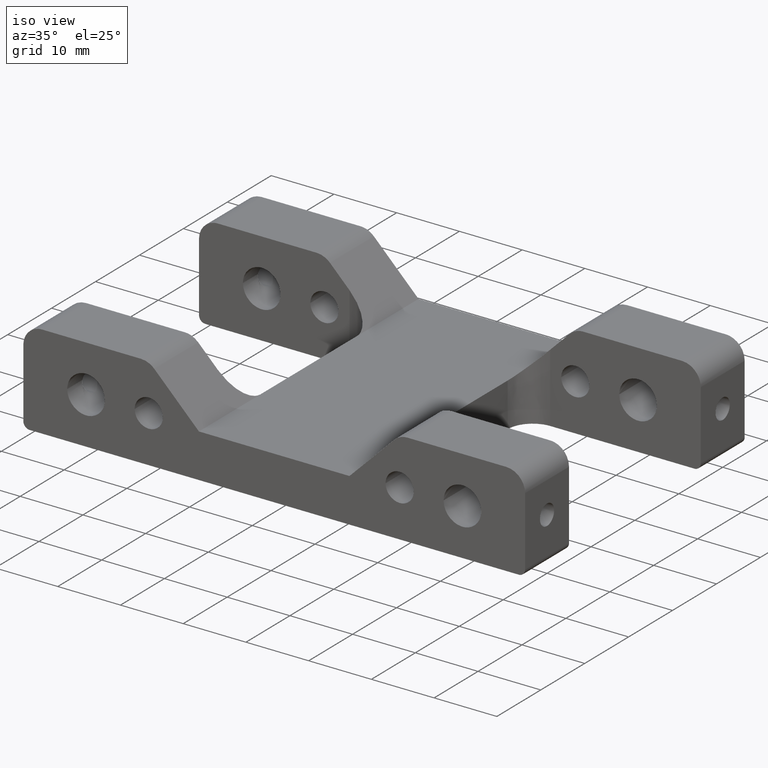
[diagram: clean part render]
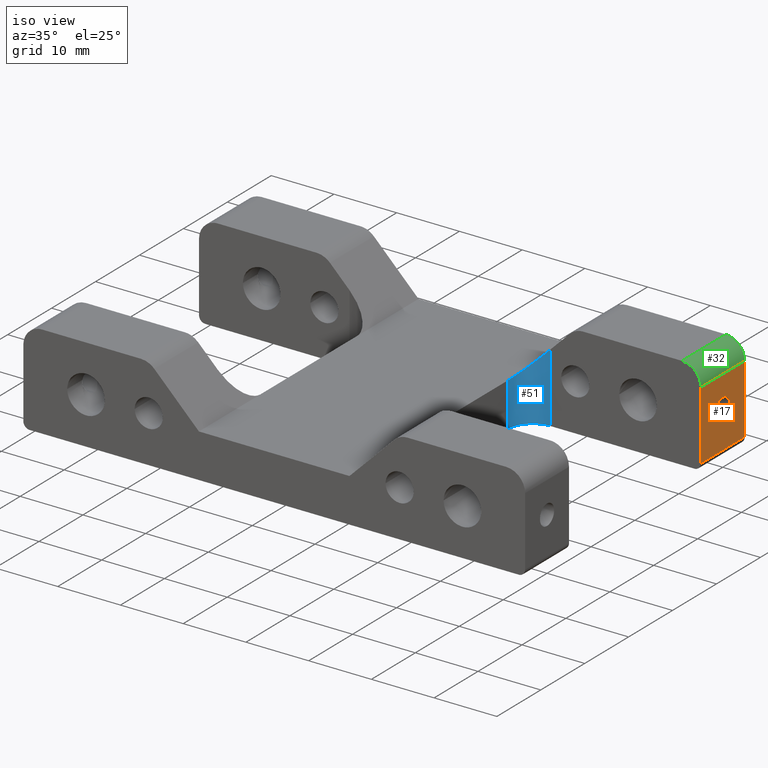
[diagram: same view with three faces highlighted in distinct colors, each labeled with its STEP entity id]
A machine part, iso view with three faces highlighted in distinct colors.
Their STEP definitions:

[orange] entity #17 — the highlighted planar face has unit normal (1, 0, 0).
#17=ADVANCED_FACE('',(#99,#79),#1159,.T.);
#79=FACE_BOUND('',#164,.T.);
#99=FACE_OUTER_BOUND('',#163,.T.);
#163=EDGE_LOOP('',(#253,#254,#255,#256));
#164=EDGE_LOOP('',(#257,#258));
#253=ORIENTED_EDGE('',*,*,#625,.F.);
#254=ORIENTED_EDGE('',*,*,#626,.T.);
#255=ORIENTED_EDGE('',*,*,#627,.F.);
#256=ORIENTED_EDGE('',*,*,#628,.T.);
#257=ORIENTED_EDGE('',*,*,#762,.T.);
#258=ORIENTED_EDGE('',*,*,#803,.T.);
#625=EDGE_CURVE('',#1004,#1003,#918,.T.);
#626=EDGE_CURVE('',#1004,#1005,#919,.T.);
#627=EDGE_CURVE('',#1006,#1005,#920,.T.);
#628=EDGE_CURVE('',#1006,#1003,#921,.T.);
#762=EDGE_CURVE('',#1007,#1116,#875,.T.);
#803=EDGE_CURVE('',#1116,#1007,#909,.T.);
#875=(
BOUNDED_CURVE()
B_SPLINE_CURVE(2,(#2182,#2183,#2184,#2185,#2186),.UNSPECIFIED.,.F.,.F.)
B_SPLINE_CURVE_WITH_KNOTS((3,2,3),(3.14159265358979,4.71238898038468,6.28318530717959),
 .UNSPECIFIED.)
CURVE()
GEOMETRIC_REPRESENTATION_ITEM()
RATIONAL_B_SPLINE_CURVE((1.,0.707106781186548,1.,0.707106781186548,1.))
REPRESENTATION_ITEM('')
);
#909=(
BOUNDED_CURVE()
B_SPLINE_CURVE(2,(#2386,#2387,#2388,#2389,#2390),.UNSPECIFIED.,.F.,.F.)
B_SPLINE_CURVE_WITH_KNOTS((3,2,3),(6.28318530717959,7.85398163397449,9.42477796076938),
 .UNSPECIFIED.)
CURVE()
GEOMETRIC_REPRESENTATION_ITEM()
RATIONAL_B_SPLINE_CURVE((1.,0.707106781186548,1.,0.707106781186548,1.))
REPRESENTATION_ITEM('')
);
#918=B_SPLINE_CURVE_WITH_KNOTS('',1,(#1755,#1756),.UNSPECIFIED.,.F.,.F.,
(2,2),(-3.75,-2.75),.UNSPECIFIED.);
#919=B_SPLINE_CURVE_WITH_KNOTS('',1,(#1757,#1758),.UNSPECIFIED.,.F.,.F.,
(2,2),(0.1,1.2),.UNSPECIFIED.);
#920=B_SPLINE_CURVE_WITH_KNOTS('',1,(#1759,#1760),.UNSPECIFIED.,.F.,.F.,
(2,2),(2.75,3.75),.UNSPECIFIED.);
#921=B_SPLINE_CURVE_WITH_KNOTS('',1,(#1761,#1762),.UNSPECIFIED.,.F.,.F.,
(2,2),(-0.45,0.65),.UNSPECIFIED.);
#1003=VERTEX_POINT('',#1625);
#1004=VERTEX_POINT('',#1626);
#1005=VERTEX_POINT('',#1627);
#1006=VERTEX_POINT('',#1628);
#1007=VERTEX_POINT('',#1629);
#1116=VERTEX_POINT('',#1738);
#1159=PLANE('',#1201);
#1201=AXIS2_PLACEMENT_3D('',#1251,#1226,$);
#1226=DIRECTION('',(1.,0.,0.));
#1251=CARTESIAN_POINT('',(40.0000000118028,14.9900000026954,0.989999999999999));
#1625=CARTESIAN_POINT('',(40.0000000118028,15.0000000026954,1.));
#1626=CARTESIAN_POINT('',(40.0000000118028,25.0000000026954,1.));
#1627=CARTESIAN_POINT('',(40.0000000118028,25.0000000026954,12.));
#1628=CARTESIAN_POINT('',(40.0000000118028,15.0000000026954,12.));
#1629=CARTESIAN_POINT('',(40.0000000118028,20.0000000026954,8.621));
#1738=CARTESIAN_POINT('',(40.0000000118028,20.0000000026954,5.379));
#1755=CARTESIAN_POINT('',(40.0000000118028,25.0000000026954,1.));
#1756=CARTESIAN_POINT('',(40.0000000118028,15.0000000026954,1.));
#1757=CARTESIAN_POINT('',(40.0000000118028,25.0000000026954,1.));
#1758=CARTESIAN_POINT('',(40.0000000118028,25.0000000026954,12.));
#1759=CARTESIAN_POINT('',(40.0000000118028,15.0000000026954,12.));
#1760=CARTESIAN_POINT('',(40.0000000118028,25.0000000026954,12.));
#1761=CARTESIAN_POINT('',(40.0000000118028,15.0000000026954,12.));
#1762=CARTESIAN_POINT('',(40.0000000118028,15.0000000026954,1.));
#2182=CARTESIAN_POINT('',(40.0000000118028,20.0000000026954,8.621));
#2183=CARTESIAN_POINT('',(40.0000000118028,21.6210000026954,8.621));
#2184=CARTESIAN_POINT('',(40.0000000118028,21.6210000026954,7.));
#2185=CARTESIAN_POINT('',(40.0000000118028,21.6210000026954,5.379));
#2186=CARTESIAN_POINT('',(40.0000000118028,20.0000000026954,5.379));
#2386=CARTESIAN_POINT('',(40.0000000118028,20.0000000026954,5.379));
#2387=CARTESIAN_POINT('',(40.0000000118028,18.3790000026954,5.379));
#2388=CARTESIAN_POINT('',(40.0000000118028,18.3790000026954,7.));
#2389=CARTESIAN_POINT('',(40.0000000118028,18.3790000026954,8.621));
#2390=CARTESIAN_POINT('',(40.0000000118028,20.0000000026954,8.621));

[blue] entity #51 — the highlighted face is a freeform B-spline surface patch.
#51=ADVANCED_FACE('',(#133),#1135,.T.);
#133=FACE_OUTER_BOUND('',#205,.T.);
#205=EDGE_LOOP('',(#437,#438,#439,#440));
#437=ORIENTED_EDGE('',*,*,#667,.T.);
#438=ORIENTED_EDGE('',*,*,#716,.T.);
#439=ORIENTED_EDGE('',*,*,#717,.T.);
#440=ORIENTED_EDGE('',*,*,#633,.T.);
#633=EDGE_CURVE('',#1021,#1020,#926,.T.);
#667=EDGE_CURVE('',#1020,#1047,#817,.T.);
#716=EDGE_CURVE('',#1047,#1082,#974,.T.);
#717=EDGE_CURVE('',#1082,#1021,#840,.T.);
#817=(
BOUNDED_CURVE()
B_SPLINE_CURVE(2,(#1873,#1874,#1875),.UNSPECIFIED.,.F.,.F.)
B_SPLINE_CURVE_WITH_KNOTS((3,3),(-1.5707963267949,0.),.UNSPECIFIED.)
CURVE()
GEOMETRIC_REPRESENTATION_ITEM()
RATIONAL_B_SPLINE_CURVE((1.,0.707106781186547,1.))
REPRESENTATION_ITEM('')
);
#840=(
BOUNDED_CURVE()
B_SPLINE_CURVE(2,(#1993,#1994,#1995),.UNSPECIFIED.,.F.,.F.)
B_SPLINE_CURVE_WITH_KNOTS((3,3),(-0.785398163397448,0.785398163397448),
 .UNSPECIFIED.)
CURVE()
GEOMETRIC_REPRESENTATION_ITEM()
RATIONAL_B_SPLINE_CURVE((1.,0.707106781186548,1.))
REPRESENTATION_ITEM('')
);
#926=B_SPLINE_CURVE_WITH_KNOTS('',1,(#1771,#1772),.UNSPECIFIED.,.F.,.F.,
(2,2),(-1.5,-0.4),.UNSPECIFIED.);
#974=B_SPLINE_CURVE_WITH_KNOTS('',1,(#1991,#1992),.UNSPECIFIED.,.F.,.F.,
(2,2),(0.8,1.5),.UNSPECIFIED.);
#1020=VERTEX_POINT('',#1642);
#1021=VERTEX_POINT('',#1643);
#1047=VERTEX_POINT('',#1669);
#1082=VERTEX_POINT('',#1704);
#1135=(
BOUNDED_SURFACE()
B_SPLINE_SURFACE(1,2,((#1415,#1416,#1417),(#1418,#1419,#1420)),
 .UNSPECIFIED.,.F.,.F.,.F.)
B_SPLINE_SURFACE_WITH_KNOTS((2,2),(3,3),(1.,3.75),(-0.785398163397448,0.785398163397448),
 .UNSPECIFIED.)
GEOMETRIC_REPRESENTATION_ITEM()
RATIONAL_B_SPLINE_SURFACE(((1.,0.707106781186548,1.),(1.,0.707106781186548,
1.)))
REPRESENTATION_ITEM('')
SURFACE()
);
#1415=CARTESIAN_POINT('',(12.0000000118028,11.0000000026954,11.));
#1416=CARTESIAN_POINT('',(12.0000000118028,15.0000000026954,11.));
#1417=CARTESIAN_POINT('',(16.0000000118028,15.0000000026954,11.));
#1418=CARTESIAN_POINT('',(12.0000000118028,11.0000000026954,0.));
#1419=CARTESIAN_POINT('',(12.0000000118028,15.0000000026954,0.));
#1420=CARTESIAN_POINT('',(16.0000000118028,15.0000000026954,0.));
#1642=CARTESIAN_POINT('',(16.0000000118028,15.0000000026954,11.));
#1643=CARTESIAN_POINT('',(16.0000000118028,15.0000000026954,0.));
#1669=CARTESIAN_POINT('',(12.0000000118028,11.0000000026954,7.));
#1704=CARTESIAN_POINT('',(12.0000000118028,11.0000000026954,0.));
#1771=CARTESIAN_POINT('',(16.0000000118028,15.0000000026954,0.));
#1772=CARTESIAN_POINT('',(16.0000000118028,15.0000000026954,11.));
#1873=CARTESIAN_POINT('',(16.0000000118028,15.0000000026954,11.));
#1874=CARTESIAN_POINT('',(12.0000000118028,15.0000000026954,7.));
#1875=CARTESIAN_POINT('',(12.0000000118028,11.0000000026954,7.));
#1991=CARTESIAN_POINT('',(12.0000000118028,11.0000000026954,7.));
#1992=CARTESIAN_POINT('',(12.0000000118028,11.0000000026954,0.));
#1993=CARTESIAN_POINT('',(12.0000000118028,11.0000000026954,0.));
#1994=CARTESIAN_POINT('',(12.0000000118028,15.0000000026954,0.));
#1995=CARTESIAN_POINT('',(16.0000000118028,15.0000000026954,0.));

[green] entity #32 — the highlighted face is a freeform B-spline surface patch.
#32=ADVANCED_FACE('',(#114),#1125,.T.);
#114=FACE_OUTER_BOUND('',#183,.T.);
#183=EDGE_LOOP('',(#350,#351,#352,#353));
#350=ORIENTED_EDGE('',*,*,#669,.T.);
#351=ORIENTED_EDGE('',*,*,#670,.T.);
#352=ORIENTED_EDGE('',*,*,#627,.T.);
#353=ORIENTED_EDGE('',*,*,#671,.T.);
#627=EDGE_CURVE('',#1006,#1005,#920,.T.);
#669=EDGE_CURVE('',#1059,#1017,#818,.T.);
#670=EDGE_CURVE('',#1017,#1006,#819,.T.);
#671=EDGE_CURVE('',#1005,#1059,#820,.T.);
#818=(
BOUNDED_CURVE()
B_SPLINE_CURVE(1,(#1878,#1879),.UNSPECIFIED.,.F.,.F.)
B_SPLINE_CURVE_WITH_KNOTS((2,2),(9.16666666666667,12.5),.UNSPECIFIED.)
CURVE()
GEOMETRIC_REPRESENTATION_ITEM()
RATIONAL_B_SPLINE_CURVE((1.,1.))
REPRESENTATION_ITEM('')
);
#819=(
BOUNDED_CURVE()
B_SPLINE_CURVE(2,(#1880,#1881,#1882),.UNSPECIFIED.,.F.,.F.)
B_SPLINE_CURVE_WITH_KNOTS((3,3),(-0.785398163397446,0.785398163397451),
 .UNSPECIFIED.)
CURVE()
GEOMETRIC_REPRESENTATION_ITEM()
RATIONAL_B_SPLINE_CURVE((1.,0.707106781186548,1.))
REPRESENTATION_ITEM('')
);
#820=(
BOUNDED_CURVE()
B_SPLINE_CURVE(2,(#1883,#1884,#1885),.UNSPECIFIED.,.F.,.F.)
B_SPLINE_CURVE_WITH_KNOTS((3,3),(-0.785398163397451,0.785398163397446),
 .UNSPECIFIED.)
CURVE()
GEOMETRIC_REPRESENTATION_ITEM()
RATIONAL_B_SPLINE_CURVE((1.,0.707106781186548,1.))
REPRESENTATION_ITEM('')
);
#920=B_SPLINE_CURVE_WITH_KNOTS('',1,(#1759,#1760),.UNSPECIFIED.,.F.,.F.,
(2,2),(2.75,3.75),.UNSPECIFIED.);
#1005=VERTEX_POINT('',#1627);
#1006=VERTEX_POINT('',#1628);
#1017=VERTEX_POINT('',#1639);
#1059=VERTEX_POINT('',#1681);
#1125=(
BOUNDED_SURFACE()
B_SPLINE_SURFACE(1,2,((#1346,#1347,#1348),(#1349,#1350,#1351)),
 .UNSPECIFIED.,.F.,.F.,.F.)
B_SPLINE_SURFACE_WITH_KNOTS((2,2),(3,3),(9.16666666666667,12.5),(-0.785398163397446,
0.785398163397451),.UNSPECIFIED.)
GEOMETRIC_REPRESENTATION_ITEM()
RATIONAL_B_SPLINE_SURFACE(((1.,0.707106781186548,1.),(1.,0.707106781186548,
1.)))
REPRESENTATION_ITEM('')
SURFACE()
);
#1346=CARTESIAN_POINT('',(37.0000000118028,25.0000000026954,15.));
#1347=CARTESIAN_POINT('',(40.0000000118028,25.0000000026954,15.));
#1348=CARTESIAN_POINT('',(40.0000000118028,25.0000000026954,12.));
#1349=CARTESIAN_POINT('',(37.0000000118028,15.0000000026954,15.));
#1350=CARTESIAN_POINT('',(40.0000000118028,15.0000000026954,15.));
#1351=CARTESIAN_POINT('',(40.0000000118028,15.0000000026954,12.));
#1627=CARTESIAN_POINT('',(40.0000000118028,25.0000000026954,12.));
#1628=CARTESIAN_POINT('',(40.0000000118028,15.0000000026954,12.));
#1639=CARTESIAN_POINT('',(37.0000000118028,15.0000000026954,15.));
#1681=CARTESIAN_POINT('',(37.0000000118028,25.0000000026954,15.));
#1759=CARTESIAN_POINT('',(40.0000000118028,15.0000000026954,12.));
#1760=CARTESIAN_POINT('',(40.0000000118028,25.0000000026954,12.));
#1878=CARTESIAN_POINT('',(37.0000000118028,25.0000000026954,15.));
#1879=CARTESIAN_POINT('',(37.0000000118028,15.0000000026954,15.));
#1880=CARTESIAN_POINT('',(37.0000000118028,15.0000000026954,15.));
#1881=CARTESIAN_POINT('',(40.0000000118028,15.0000000026954,15.));
#1882=CARTESIAN_POINT('',(40.0000000118028,15.0000000026954,12.));
#1883=CARTESIAN_POINT('',(40.0000000118028,25.0000000026954,12.));
#1884=CARTESIAN_POINT('',(40.0000000118028,25.0000000026954,15.));
#1885=CARTESIAN_POINT('',(37.0000000118028,25.0000000026954,15.));